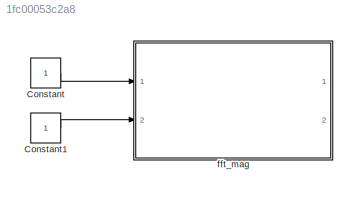
MODEL slx_1fc00053c2a8
KIND model
CONFIG AbsTol = auto
CONFIG EnableMultiTasking = off
CONFIG FixedStep = auto
CONFIG MaxStep = auto
CONFIG MinStep = auto
CONFIG RelTol = 1e-3
CONFIG SampleTimeConstraint = Unconstrained
CONFIG Solver = VariableStepAuto
CONFIG SolverName = VariableStepAuto
CONFIG StartTime = 0.0
CONFIG StopTime = 10.0
BLOCK [Constant] Constant
  OutDataTypeStr = fixdt(1,13,12)
  SampleTime = 0.1
BLOCK [Constant] Constant1
  OutDataTypeStr = boolean
  SampleTime = 0.1
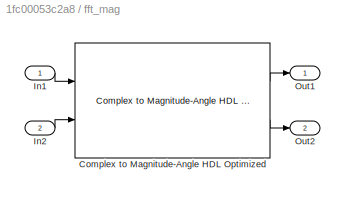
BLOCK [SubSystem] fft_mag
  Ports = [2, 2]
  RequestExecContextInheritance = off
BLOCK [Reference] fft_mag/Complex to Magnitude-Angle HDL Optimized  REF=dspmathops/Complex to Magnitude-Angle
HDL Optimized
  Ports = [2, 2]
  SourceBlock = dspmathops/Complex to Magnitude-Angle\nHDL Optimized
  SourceProductBaseCode = DS
  SourceProductName = DSP System Toolbox
  SourceType = Complex to Magnitude-Angle HDL Optimized
BLOCK [Inport] fft_mag/In1
  IconDisplay = Port number
BLOCK [Inport] fft_mag/In2
  IconDisplay = Port number
  Port = 2
BLOCK [Outport] fft_mag/Out1
  IconDisplay = Port number
BLOCK [Outport] fft_mag/Out2
  IconDisplay = Port number
  Port = 2
LINE Constant1:1 -> fft_mag:2
LINE Constant:1 -> fft_mag:1
LINE fft_mag/Complex to Magnitude-Angle HDL Optimized:1 -> fft_mag/Out1:1
LINE fft_mag/Complex to Magnitude-Angle HDL Optimized:2 -> fft_mag/Out2:1
LINE fft_mag/In1:1 -> fft_mag/Complex to Magnitude-Angle HDL Optimized:1
LINE fft_mag/In2:1 -> fft_mag/Complex to Magnitude-Angle HDL Optimized:2
